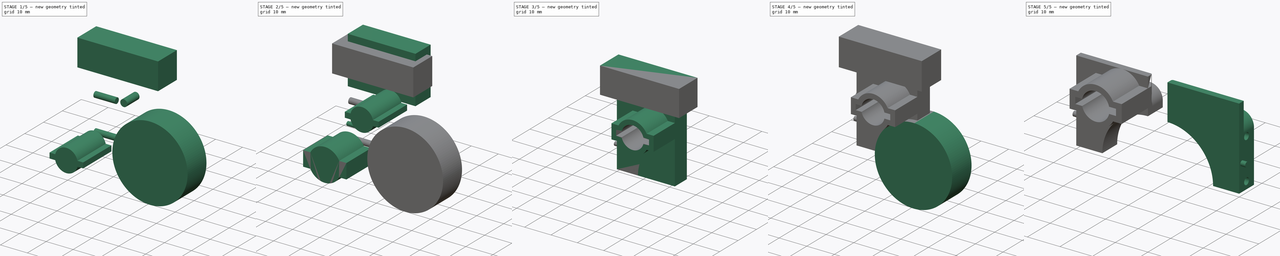
[diagram: build sequence overview — one tinted view per stage of 5, left to right]
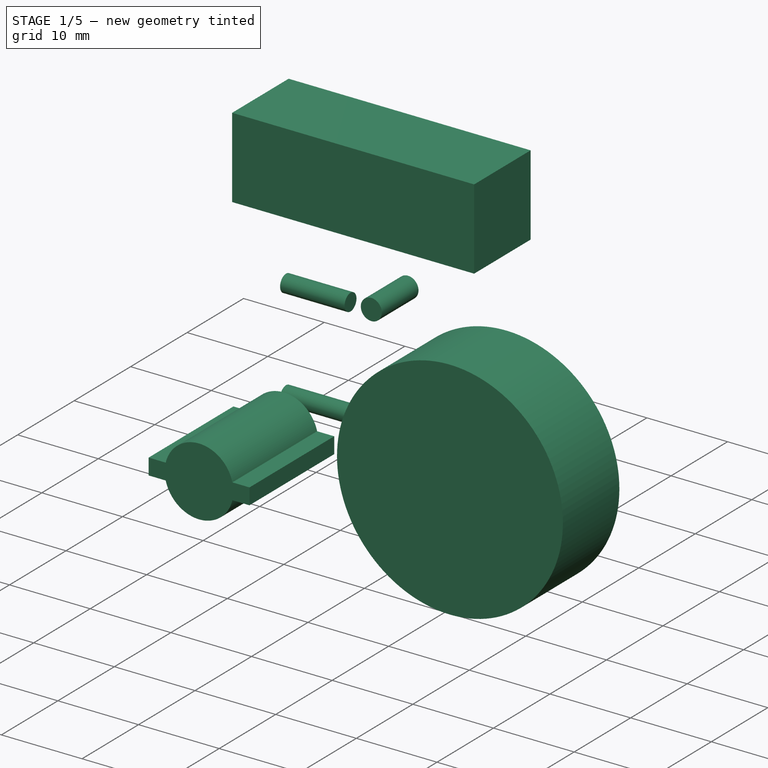
[diagram: stage 1 of 5 — iso view after this stage's code; geometry added in this stage tinted green]
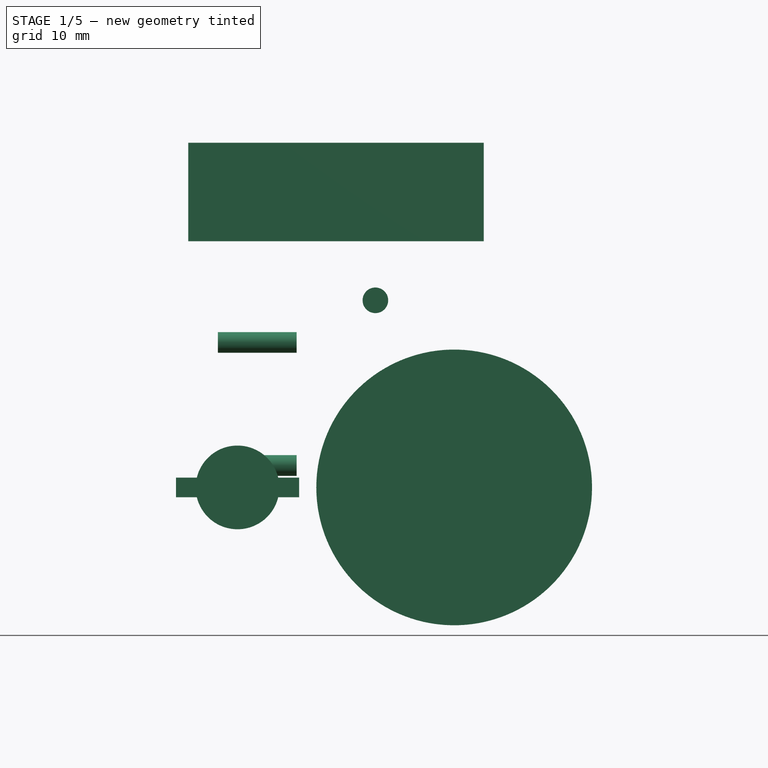
[diagram: stage 1 of 5 — front view after this stage's code; geometry added in this stage tinted green]
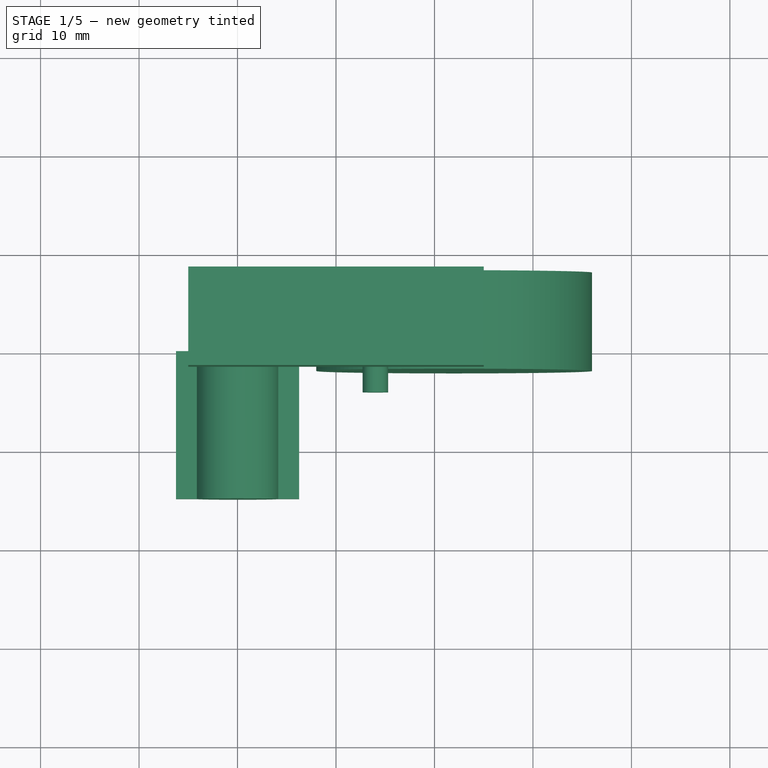
[diagram: stage 1 of 5 — top view after this stage's code; geometry added in this stage tinted green]
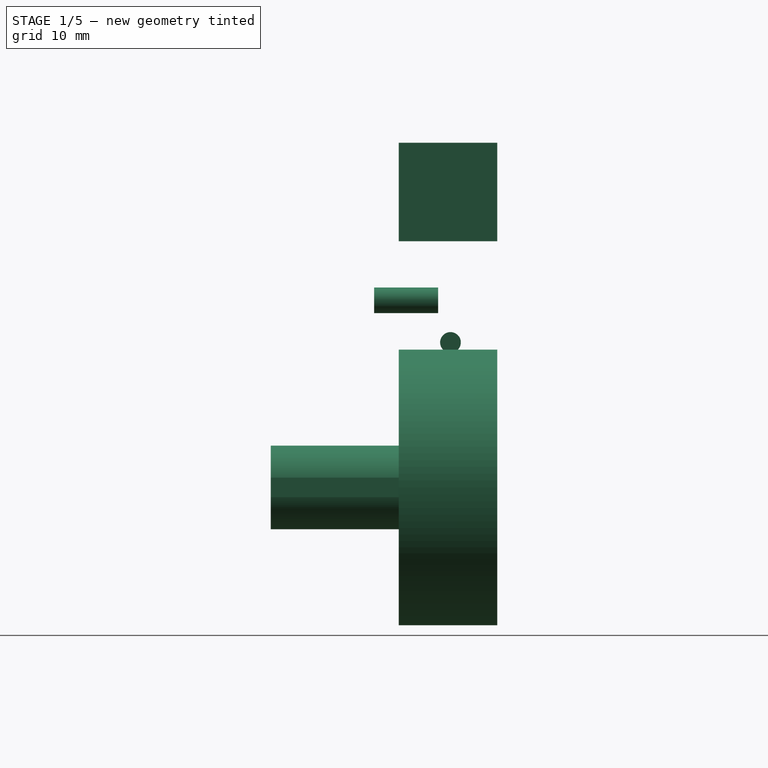
[diagram: stage 1 of 5 — right view after this stage's code; geometry added in this stage tinted green]
FCSTD DOCUMENT  (FreeCAD 0.18R)
Label: plustek120
License: All rights reserved
LicenseURL: http://en.wikipedia.org/wiki/All_rights_reserved
objects: Part::Cylinder×11, Part::Box×8, Part::MultiFuse×5, Sketcher::SketchObject×2, PartDesign::Pad×2, PartDesign::Body×2, Part::Cut×2, Part::Fillet×2, Part::Mirroring×1
note: 37 computed .brp shape members not serialized (recipe doc carries the construction recipe); baked Part::Feature solids carry a one-line shape summary decoded from their .brp

FEATURE [Part::Cylinder] Cylinder  label="Screwhole 1"
  Angle = 360
  AttacherType = Attacher::AttachEngine3D
  Height = 8
  Placement = pos=(-2,3.25,2.225) rot=(0,1,0;1.5708rad)
  Radius = 1.05
FEATURE [Part::Cylinder] Cylinder001  label="Screwhole 2"
  Angle = 360
  AttacherType = Attacher::AttachEngine3D
  Height = 8
  Placement = pos=(-2,3.25,14.725) rot=(0,1,0;1.5708rad)
  Radius = 1.05
FEATURE [PartDesign::Body] Body  label="T tube"
  Group = -> [CopySketch001,Pad]
  Origin = -> Origin001
  Placement = pos=(14,1.5,19) rot=(0,0,1;0rad)
  Tip = -> Pad
FEATURE [PartDesign::Pad] Pad001
  Length = 15
  Length2 = 100
  Placement = pos=(0,0,0) rot=(1,0,0;1.5708rad)
  Profile = -> CopySketch
  Type = 0
FEATURE [PartDesign::Body] Body001  label="T tube cutaway"
  Group = -> [CopySketch,Pad001]
  Origin = -> Origin002
  Placement = pos=(14,1.5,19) rot=(0,0,1;0rad)
  Tip = -> Pad001
FEATURE [Part::Cylinder] Cylinder005  label="Cylinder003"
  Angle = 360
  AttacherType = Attacher::AttachEngine3D
  Height = 10
  Placement = pos=(22,8,0) rot=(1,0,0;1.5708rad)
  Radius = 14
FEATURE [Part::Box] Box010  label="TopCutoff001"
  AttacherType = Attacher::AttachEngine3D
  Height = 10
  Length = 30
  Placement = pos=(-5,-2,25) rot=(0,0,1;0rad)
  Width = 10
FEATURE [Part::Cylinder] Cylinder011
  Angle = 360
  AttacherType = Attacher::AttachEngine3D
  Height = 6.5
  Placement = pos=(14,2,19) rot=(1,0,0;1.5708rad)
  Radius = 1.3
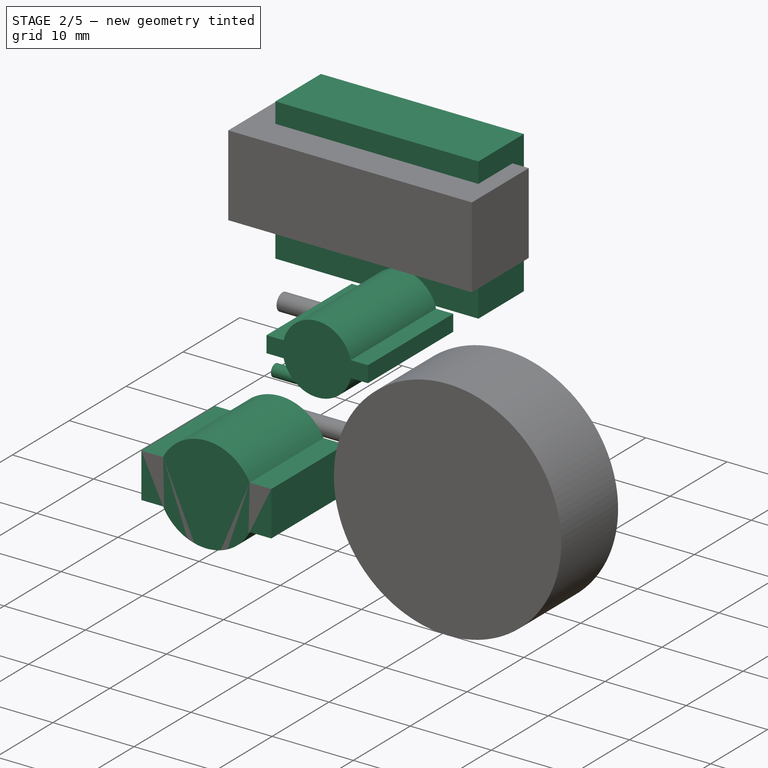
[diagram: stage 2 of 5 — iso view after this stage's code; geometry added in this stage tinted green]
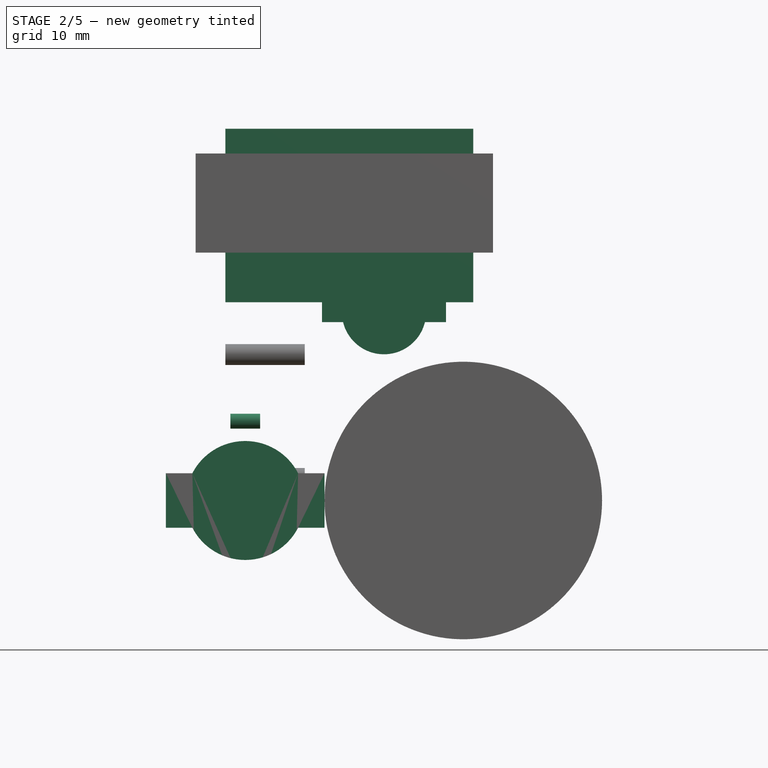
[diagram: stage 2 of 5 — front view after this stage's code; geometry added in this stage tinted green]
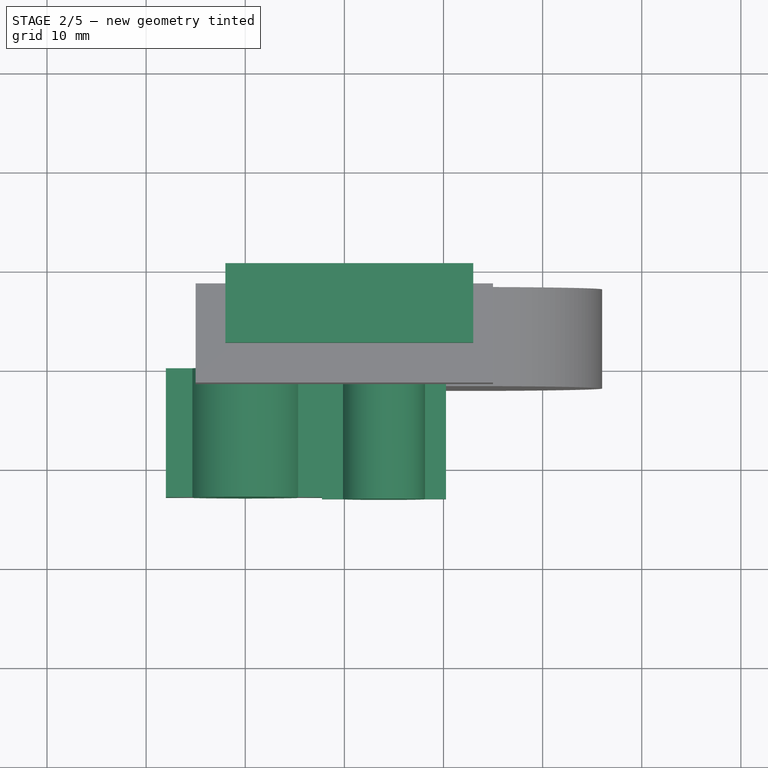
[diagram: stage 2 of 5 — top view after this stage's code; geometry added in this stage tinted green]
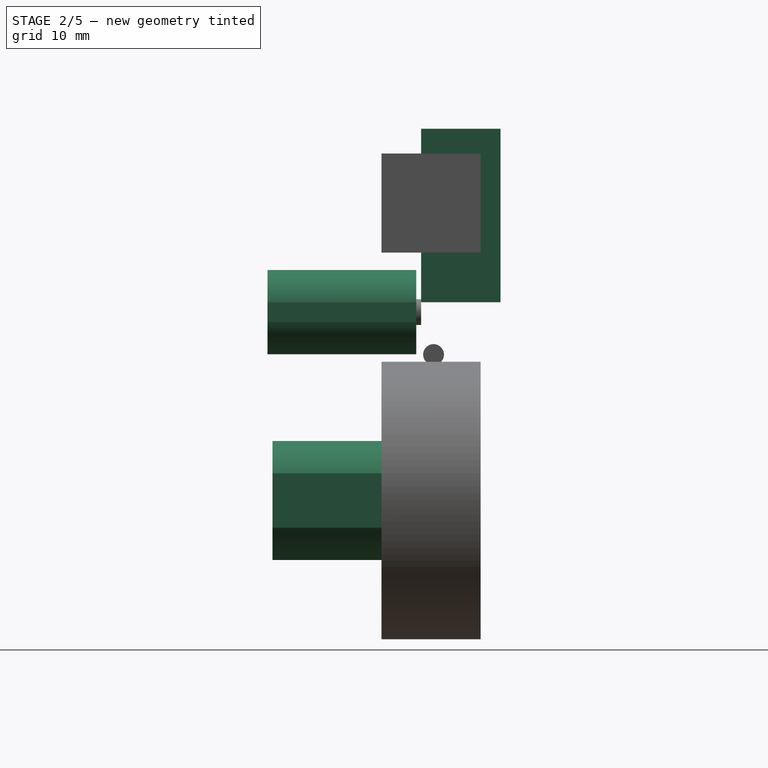
[diagram: stage 2 of 5 — right view after this stage's code; geometry added in this stage tinted green]
FEATURE [Part::Box] Box002  label="Carrier cutaway 2"
  AttacherType = Attacher::AttachEngine3D
  Height = 17.5
  Length = 25
  Placement = pos=(-2,2,20) rot=(0,0,1;0rad)
  Width = 8
FEATURE [Part::Cylinder] Cylinder002  label="Cylinder"
  Angle = 360
  AttacherType = Attacher::AttachEngine3D
  Height = 3
  Placement = pos=(-1.5,1.25,31.25) rot=(0,1,0;1.5708rad)
  Radius = 0.75
FEATURE [Part::Box] Box003  label="Cube"
  AttacherType = Attacher::AttachEngine3D
  Height = 1.5
  Length = 3
  Placement = pos=(-1.5,3.5,30) rot=(0,0,1;0rad)
  Width = 3
FEATURE [Part::Cylinder] Cylinder003  label="Cylinder001"
  Angle = 360
  AttacherType = Attacher::AttachEngine3D
  Height = 3
  Placement = pos=(-1.5,1.25,8) rot=(0,1,0;1.5708rad)
  Radius = 0.75
FEATURE [Sketcher::SketchObject] CopySketch  label="Inner tube cutout sketch"
  MapMode = 5
  Placement = pos=(0,0,0) rot=(1,0,0;1.5708rad)
  Support = -> [XZ_Plane002]
  sketch-geometry (19):
    g0: Circle [constr] CenterX=0 CenterY=0 CenterZ=0 NormalX=0 NormalY=0 NormalZ=1 AngleXU=0 Radius=4.25
    g1: LineSegment [constr] StartX=-6.25 StartY=-1 StartZ=0 EndX=6.25 EndY=-1 EndZ=0
    g2: LineSegment [constr] StartX=6.25 StartY=-1 StartZ=0 EndX=6.25 EndY=1 EndZ=0
    g3: LineSegment [constr] StartX=6.25 StartY=1 StartZ=0 EndX=-6.25 EndY=1 EndZ=0
    g4: LineSegment [constr] StartX=-6.25 StartY=1 StartZ=0 EndX=-6.25 EndY=-1 EndZ=0
    g5: Circle [constr] CenterX=0 CenterY=0 CenterZ=0 NormalX=0 NormalY=0 NormalZ=1 AngleXU=0 Radius=6.32949
    g6: GeomPoint X=-4.13068 Y=1 Z=0
    g7: GeomPoint X=-4.13068 Y=-1 Z=0
    g8: GeomPoint X=4.13068 Y=1 Z=0
    g9: GeomPoint X=4.13068 Y=-1 Z=0
    g10: LineSegment StartX=-4.13068 StartY=1 StartZ=0 EndX=-6.25 EndY=1 EndZ=0
    g11: LineSegment StartX=-6.25 StartY=1 StartZ=0 EndX=-6.25 EndY=-1 EndZ=0
    g12: LineSegment StartX=-6.25 StartY=-1 StartZ=0 EndX=-4.13068 EndY=-1 EndZ=0
    g13: LineSegment StartX=4.13068 StartY=-1 StartZ=0 EndX=6.25 EndY=-1 EndZ=0
    g14: LineSegment StartX=6.25 StartY=-1 StartZ=0 EndX=6.25 EndY=1 EndZ=0
    g15: LineSegment StartX=6.25 StartY=1 StartZ=0 EndX=4.13068 EndY=1 EndZ=0
    g16: ArcOfCircle CenterX=0 CenterY=0 CenterZ=0 NormalX=0 NormalY=0 NormalZ=1 AngleXU=0 Radius=4.25 StartAngle=0.237521 EndAngle=2.90407
    g17: ArcOfCircle CenterX=0 CenterY=0 CenterZ=0 NormalX=0 NormalY=0 NormalZ=1 AngleXU=0 Radius=4.25 StartAngle=3.37911 EndAngle=6.04423
    g18: LineSegment StartX=4.13068 StartY=-1 StartZ=0 EndX=4.12924 EndY=-1.00592 EndZ=0
  constraints (43):
    c: Coincident(g-1,g0)
    c: Radius(g0) = 4.25
    c: Coincident(g1,g2)
    c: Coincident(g2,g3)
    c: Coincident(g3,g4)
    c: Coincident(g4,g1)
    c: Horizontal(g1)
    c: Horizontal(g3)
    c: Vertical(g2)
    c: Vertical(g4)
    c: Distance(g3) = 12.5
    c: Distance(g2) = 2
    c: PointOnObject(g1,g5)
    c: Coincident(g5,g0)
    c: PointOnObject(g2,g5)
    c: PointOnObject(g3,g5)
    c: PointOnObject(g6,g3)
    c: PointOnObject(g6,g0)
    c: PointOnObject(g7,g1)
    c: PointOnObject(g7,g0)
    c: PointOnObject(g9,g0)
    c: PointOnObject(g9,g1)
    c: PointOnObject(g8,g3)
    c: Coincident(g10,g6)
    c: Coincident(g10,g3)
    c: Coincident(g10,g11)
    c: Coincident(g11,g1)
    c: Coincident(g11,g12)
    c: Coincident(g12,g7)
    c: Coincident(g13,g9)
    c: Coincident(g13,g1)
    c: Coincident(g13,g14)
    c: Coincident(g14,g2)
    c: Coincident(g14,g15)
    c: Coincident(g15,g8)
    c: Coincident(g16,g-1)
    c: Coincident(g16,g6)
    c: Coincident(g16,g8)
    c: Coincident(g17,g16)
    c: Coincident(g17,g7)
    c: Angle(g17) = 2.66512
    c: Coincident(g18,g9)
    c: Coincident(g18,g17)
FEATURE [Sketcher::SketchObject] CopySketch001  label="Outer tube sketch"
  MapMode = 5
  Placement = pos=(0,0,0) rot=(1,0,0;1.5708rad)
  Support = -> [XZ_Plane001]
  sketch-geometry (17):
    g0: Circle [constr] CenterX=0 CenterY=0 CenterZ=0 NormalX=0 NormalY=0 NormalZ=1 AngleXU=0 Radius=6
    g1: LineSegment [constr] StartX=-8 StartY=-2.75 StartZ=0 EndX=8 EndY=-2.75 EndZ=0
    g2: LineSegment [constr] StartX=8 StartY=-2.75 StartZ=0 EndX=8 EndY=2.75 EndZ=0
    g3: LineSegment [constr] StartX=8 StartY=2.75 StartZ=0 EndX=-8 EndY=2.75 EndZ=0
    g4: LineSegment [constr] StartX=-8 StartY=2.75 StartZ=0 EndX=-8 EndY=-2.75 EndZ=0
    g5: Circle [constr] CenterX=0 CenterY=0 CenterZ=0 NormalX=0 NormalY=0 NormalZ=1 AngleXU=0 Radius=8.45946
    g6: GeomPoint X=-5.33268 Y=2.75 Z=0
    g7: GeomPoint X=-5.33268 Y=-2.75 Z=0
    g8: GeomPoint X=5.33268 Y=2.75 Z=0
    g9: LineSegment StartX=-5.33268 StartY=2.75 StartZ=0 EndX=-8 EndY=2.75 EndZ=0
    g10: LineSegment StartX=-8 StartY=2.75 StartZ=0 EndX=-8 EndY=-2.75 EndZ=0
    g11: LineSegment StartX=-8 StartY=-2.75 StartZ=0 EndX=-5.33268 EndY=-2.75 EndZ=0
    g12: ArcOfCircle CenterX=0 CenterY=0 CenterZ=0 NormalX=0 NormalY=0 NormalZ=1 AngleXU=0 Radius=6 StartAngle=0.476119 EndAngle=2.66547
    g13: ArcOfCircle CenterX=0 CenterY=0 CenterZ=0 NormalX=0 NormalY=0 NormalZ=1 AngleXU=0 Radius=6 StartAngle=3.61771 EndAngle=5.80707
    g14: LineSegment StartX=5.33268 StartY=-2.75 StartZ=0 EndX=8 EndY=-2.75 EndZ=0
    g15: LineSegment StartX=8 StartY=-2.75 StartZ=0 EndX=8 EndY=2.75 EndZ=0
    g16: LineSegment StartX=8 StartY=2.75 StartZ=0 EndX=5.33268 EndY=2.75 EndZ=0
  constraints (39):
    c: Coincident(g-1,g0)
    c: Radius(g0) = 6
    c: Coincident(g1,g2)
    c: Coincident(g2,g3)
    c: Coincident(g3,g4)
    c: Coincident(g4,g1)
    c: Horizontal(g1)
    c: Horizontal(g3)
    c: Vertical(g2)
    c: Vertical(g4)
    c: Distance(g3) = 16
    c: Distance(g2) = 5.5
    c: PointOnObject(g1,g5)
    c: Coincident(g5,g0)
    c: PointOnObject(g2,g5)
    c: PointOnObject(g3,g5)
    c: PointOnObject(g6,g3)
    c: PointOnObject(g6,g0)
    c: PointOnObject(g7,g1)
    c: PointOnObject(g7,g0)
    c: PointOnObject(g8,g3)
    c: Coincident(g9,g6)
    c: Coincident(g9,g3)
    c: Coincident(g9,g10)
    c: Coincident(g10,g1)
    c: Coincident(g10,g11)
    c: Coincident(g11,g7)
    c: Coincident(g12,g-1)
    c: Coincident(g12,g6)
    c: Coincident(g12,g8)
    c: Coincident(g13,g12)
    c: Coincident(g13,g7)
    c: PointOnObject(g13,g1)
    c: Coincident(g13,g14)
    c: Coincident(g14,g1)
    c: Coincident(g14,g15)
    c: Coincident(g15,g2)
    c: Coincident(g15,g16)
    c: Coincident(g16,g8)
FEATURE [PartDesign::Pad] Pad
  Length = 13
  Length2 = 100
  Placement = pos=(0,0,0) rot=(1,0,0;1.5708rad)
  Profile = -> CopySketch001
  Type = 0
FEATURE [Part::MultiFuse] Fusion  label="Fusion_cutaway"
  Shapes = -> [Box002,Cylinder005,Body001,Cylinder001,Cylinder,Box010]
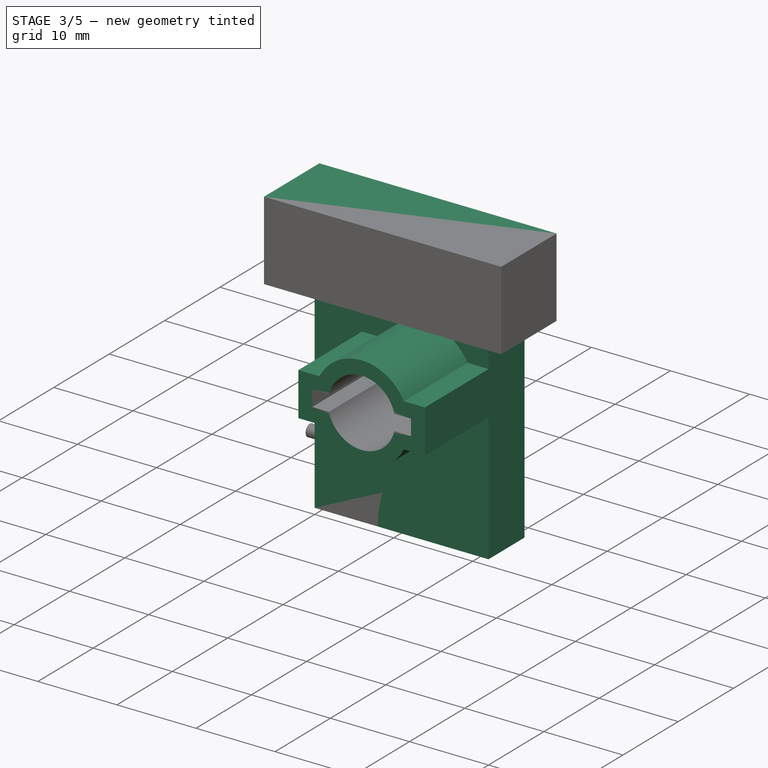
[diagram: stage 3 of 5 — iso view after this stage's code; geometry added in this stage tinted green]
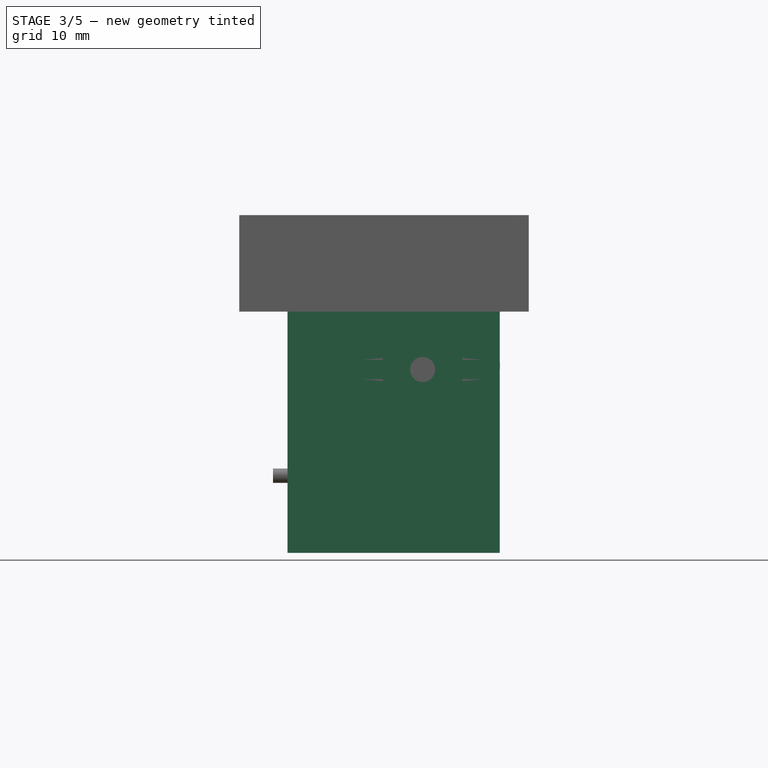
[diagram: stage 3 of 5 — front view after this stage's code; geometry added in this stage tinted green]
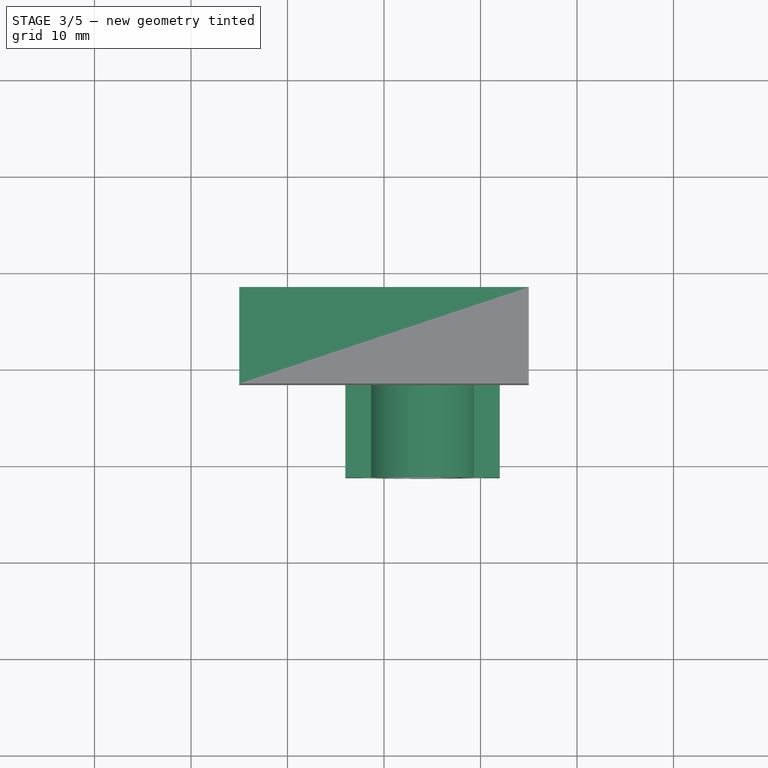
[diagram: stage 3 of 5 — top view after this stage's code; geometry added in this stage tinted green]
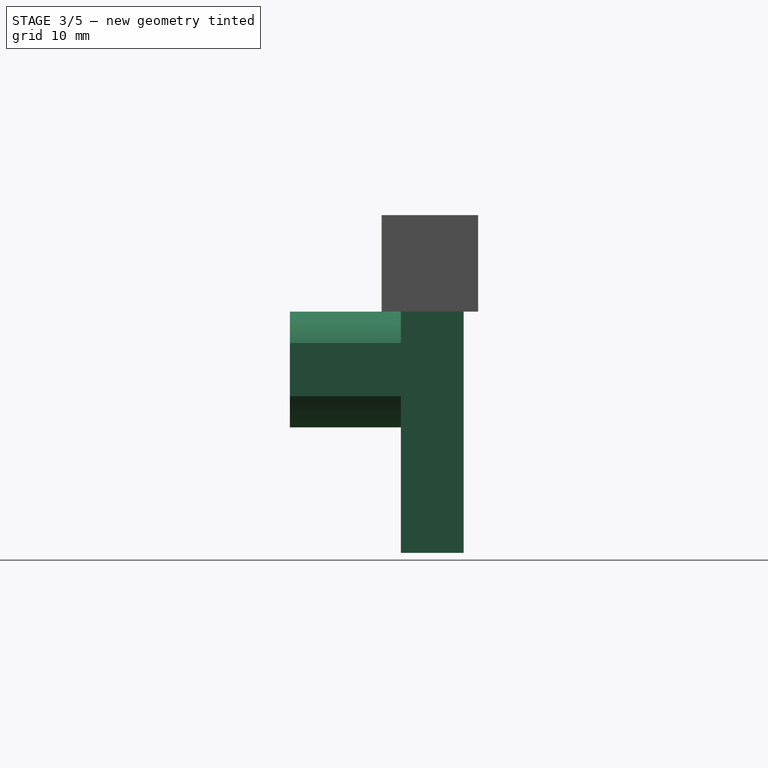
[diagram: stage 3 of 5 — right view after this stage's code; geometry added in this stage tinted green]
FEATURE [Part::Box] Box  label="Base"
  AttacherType = Attacher::AttachEngine3D
  Height = 33.5
  Length = 22
  Width = 6.5
FEATURE [Part::MultiFuse] Fusion001
  Shapes = -> [Body,Cylinder003,Cylinder002,Box,Box003]
FEATURE [Part::Cut] Cut  label="Rail support"
  Base = -> Fusion001
  Tool = -> Fusion
FEATURE [Part::Fillet] Fillet  label="Filleted carrier support (East)"
  Base = -> Cut
  Edges = 3 edges: [Edge8 r=0.5,Edge9 r=4,Edge32 r=4]
FEATURE [Part::Box] Box013  label="Base001"
  AttacherType = Attacher::AttachEngine3D
  Height = 33.5
  Length = 22
  Width = 6.5
FEATURE [Part::Box] Box014  label="TopCutoff002"
  AttacherType = Attacher::AttachEngine3D
  Height = 10
  Length = 30
  Placement = pos=(-5,-2,25) rot=(0,0,1;0rad)
  Width = 10
FEATURE [Part::MultiFuse] Fusion004
  Shapes = -> [Fillet,Cylinder011]
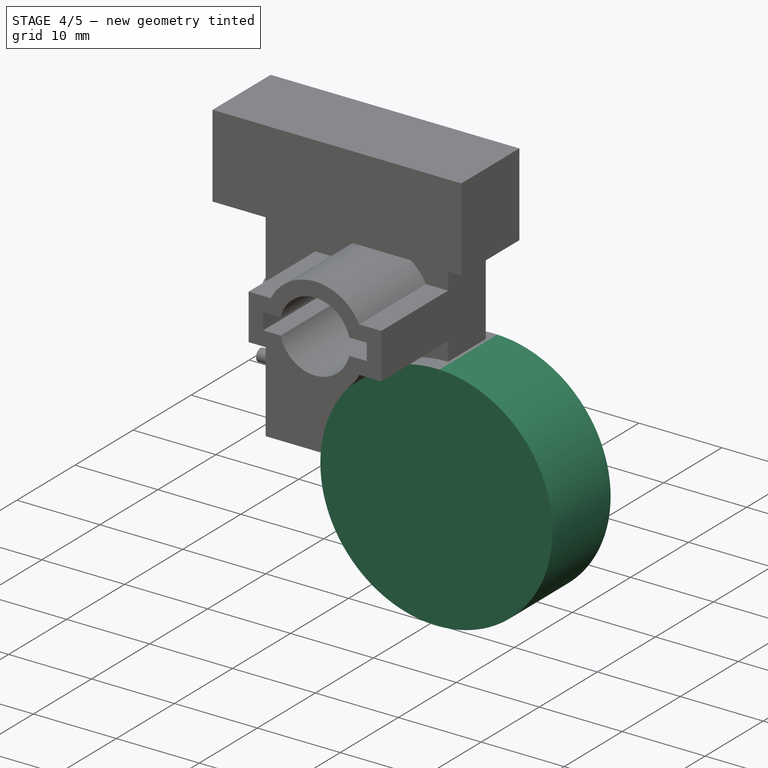
[diagram: stage 4 of 5 — iso view after this stage's code; geometry added in this stage tinted green]
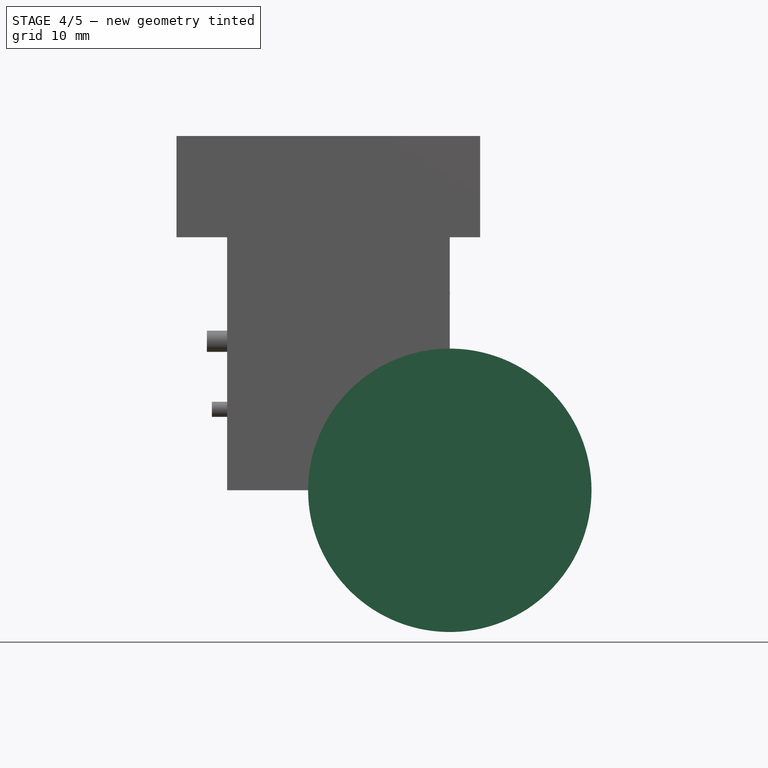
[diagram: stage 4 of 5 — front view after this stage's code; geometry added in this stage tinted green]
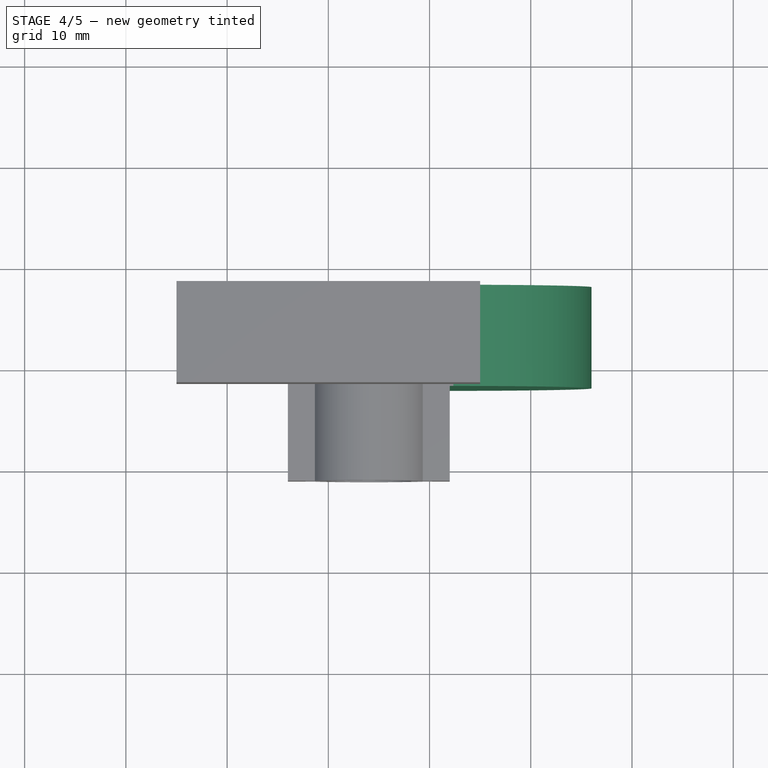
[diagram: stage 4 of 5 — top view after this stage's code; geometry added in this stage tinted green]
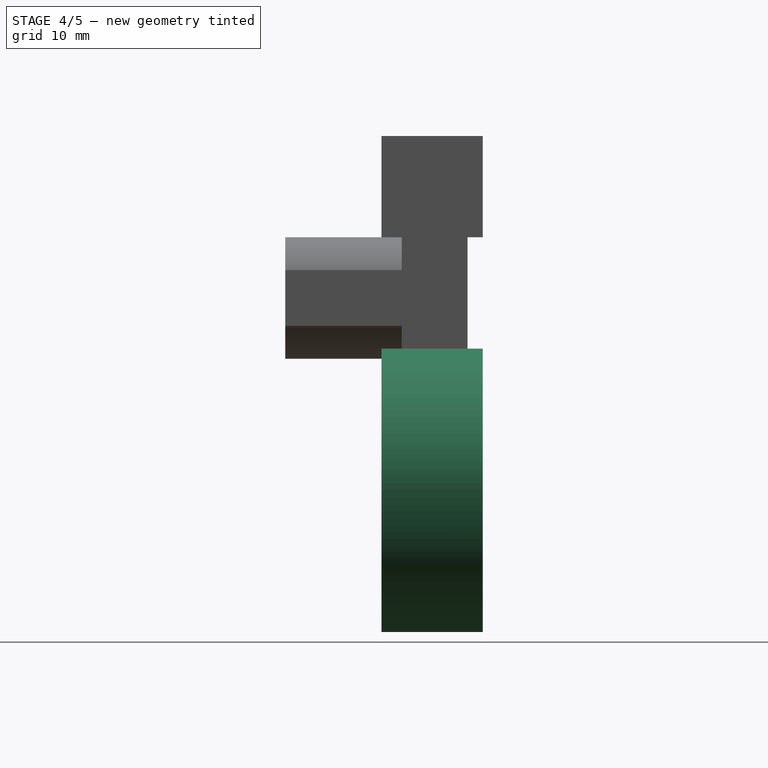
[diagram: stage 4 of 5 — right view after this stage's code; geometry added in this stage tinted green]
FEATURE [Part::Box] Box011  label="Cube001"
  AttacherType = Attacher::AttachEngine3D
  Height = 1.5
  Length = 3
  Placement = pos=(-1.5,3.5,30) rot=(0,0,1;0rad)
  Width = 3
FEATURE [Part::Cylinder] Cylinder006  label="Cylinder010"
  Angle = 360
  AttacherType = Attacher::AttachEngine3D
  Height = 3
  Placement = pos=(-1.5,1.25,8) rot=(0,1,0;1.5708rad)
  Radius = 0.75
FEATURE [Part::Cylinder] Cylinder008  label="Cylinder007"
  Angle = 360
  AttacherType = Attacher::AttachEngine3D
  Height = 3
  Placement = pos=(-1.5,1.25,31.25) rot=(0,1,0;1.5708rad)
  Radius = 0.75
FEATURE [Part::Cylinder] Cylinder009  label="Cylinder006"
  Angle = 360
  AttacherType = Attacher::AttachEngine3D
  Height = 10
  Placement = pos=(22,8,0) rot=(1,0,0;1.5708rad)
  Radius = 14
FEATURE [Part::Cylinder] Cylinder010  label="Screwhole 004"
  Angle = 360
  AttacherType = Attacher::AttachEngine3D
  Height = 8
  Placement = pos=(-2,3.25,14.725) rot=(0,1,0;1.5708rad)
  Radius = 1.05
FEATURE [Part::MultiFuse] Fusion003
  Shapes = -> [Cylinder006,Cylinder008,Box013,Box011]
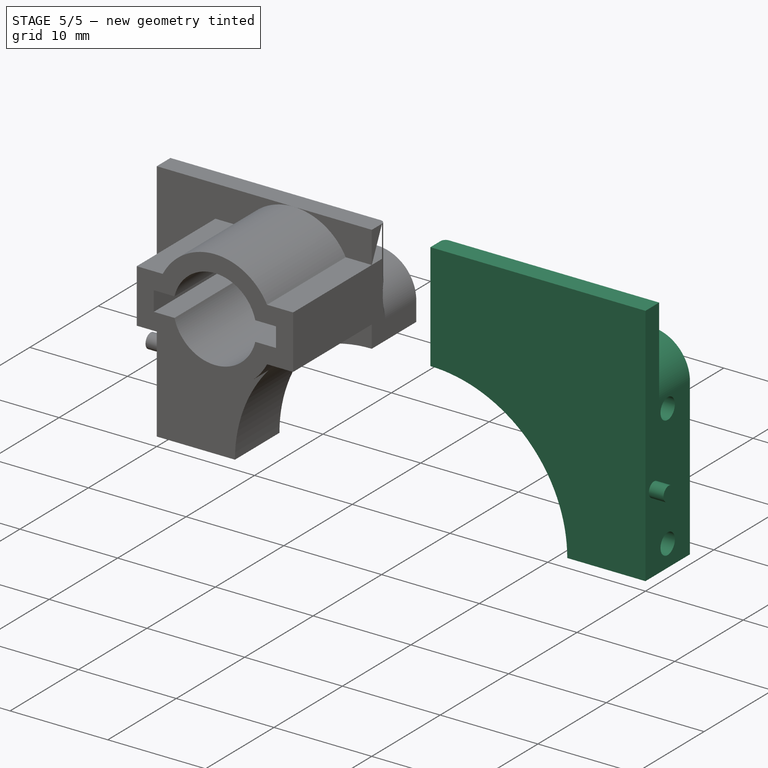
[diagram: stage 5 of 5 — iso view after this stage's code; geometry added in this stage tinted green]
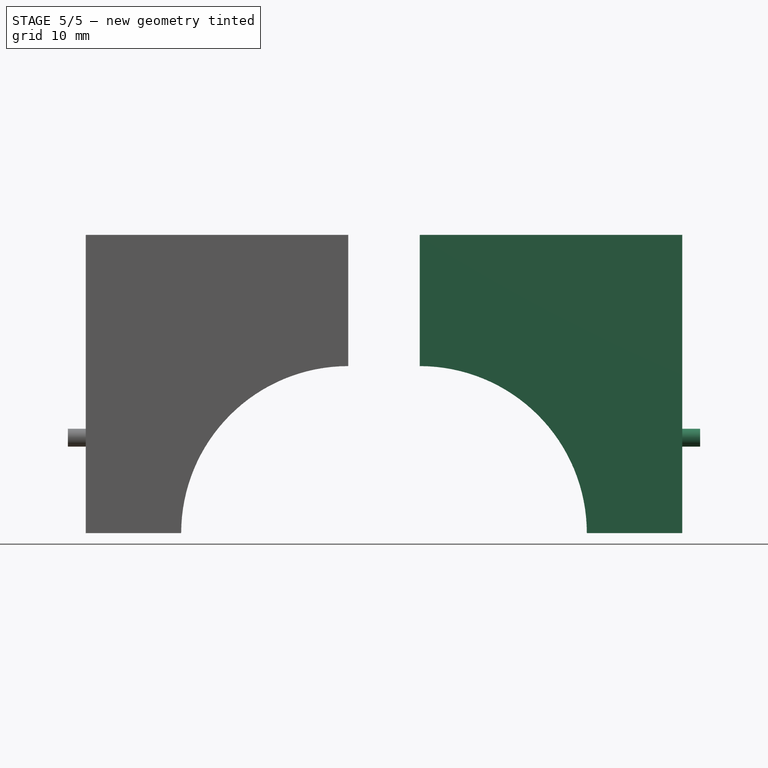
[diagram: stage 5 of 5 — front view after this stage's code; geometry added in this stage tinted green]
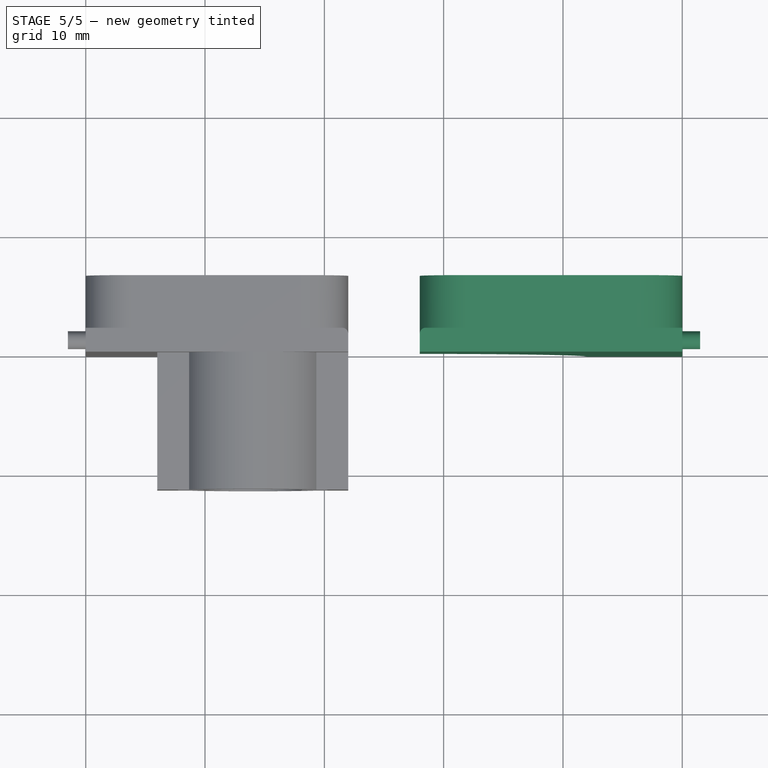
[diagram: stage 5 of 5 — top view after this stage's code; geometry added in this stage tinted green]
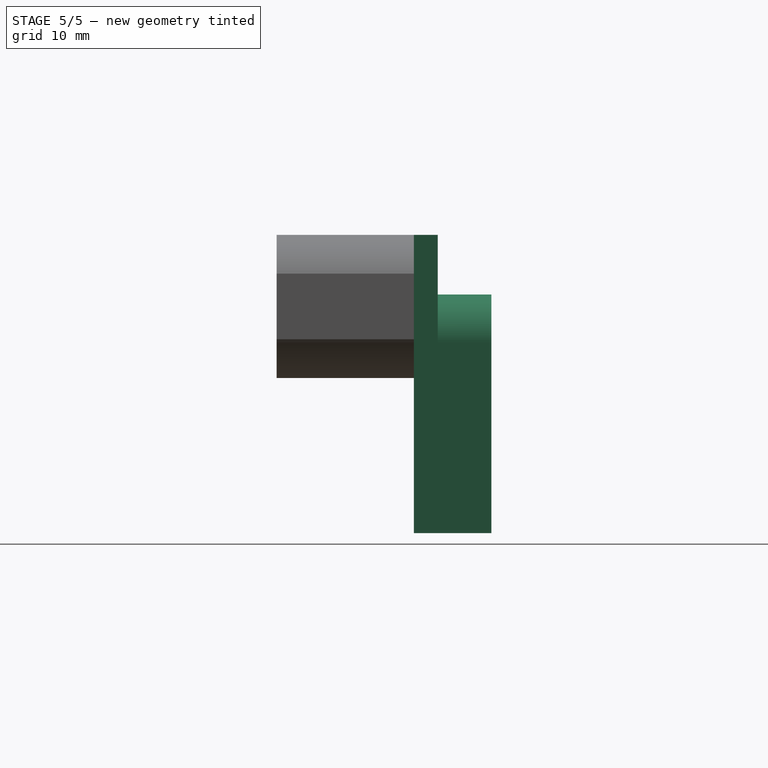
[diagram: stage 5 of 5 — right view after this stage's code; geometry added in this stage tinted green]
FEATURE [Part::Box] Box012  label="Carrier cutaway 003"
  AttacherType = Attacher::AttachEngine3D
  Height = 17.5
  Length = 25
  Placement = pos=(-2,2,20) rot=(0,0,1;0rad)
  Width = 8
FEATURE [Part::Cylinder] Cylinder007  label="Screwhole 003"
  Angle = 360
  AttacherType = Attacher::AttachEngine3D
  Height = 8
  Placement = pos=(-2,3.25,2.225) rot=(0,1,0;1.5708rad)
  Radius = 1.05
FEATURE [Part::MultiFuse] Fusion002  label="Fusion_cutaway001"
  Shapes = -> [Box012,Cylinder009,Cylinder010,Cylinder007,Box014]
FEATURE [Part::Cut] Cut001  label="Carrier support (west)"
  Base = -> Fusion003
  Tool = -> Fusion002
FEATURE [Part::Fillet] Fillet001
  Base = -> Cut001
  Edges = 3 edges: [Edge6 r=4,Edge15 r=0.5,Edge18 r=4]
FEATURE [Part::Mirroring] Part__Mirroring  label="Fillet001 (Mirror #1)"
  Base = (0,0,0)
  Normal = (1,0,0)
  Placement = pos=(50,0,0) rot=(0,0,1;0rad)
  Source = -> Fillet001
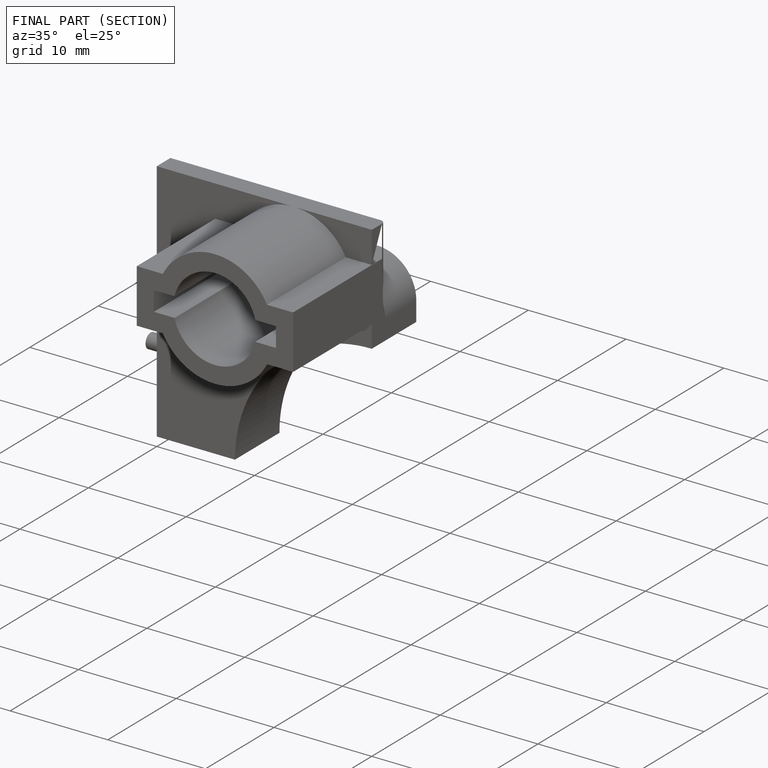
[diagram: finished part — half-section view (interior)]
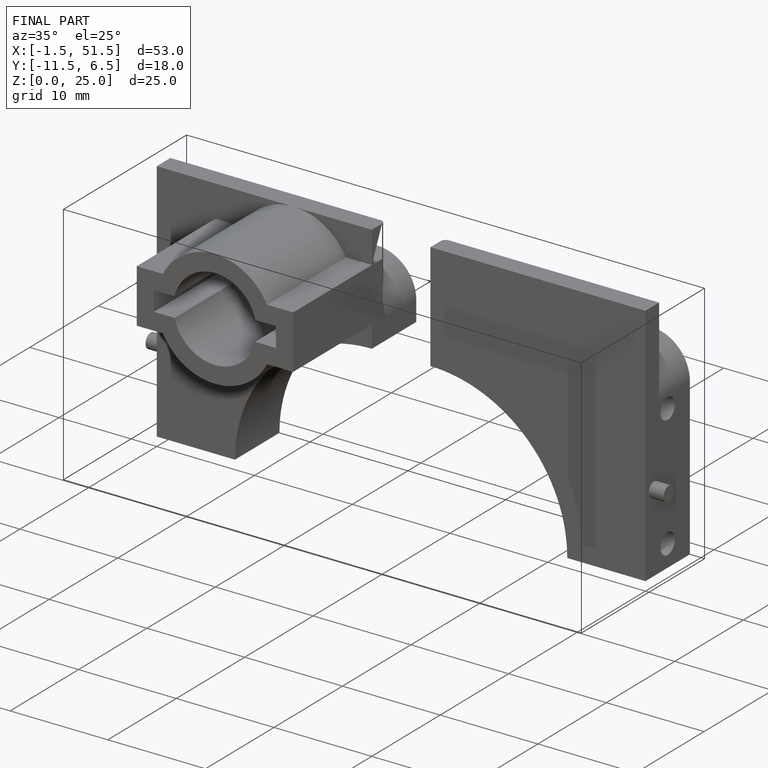
[diagram: finished part — iso view with bounding-box wireframe]
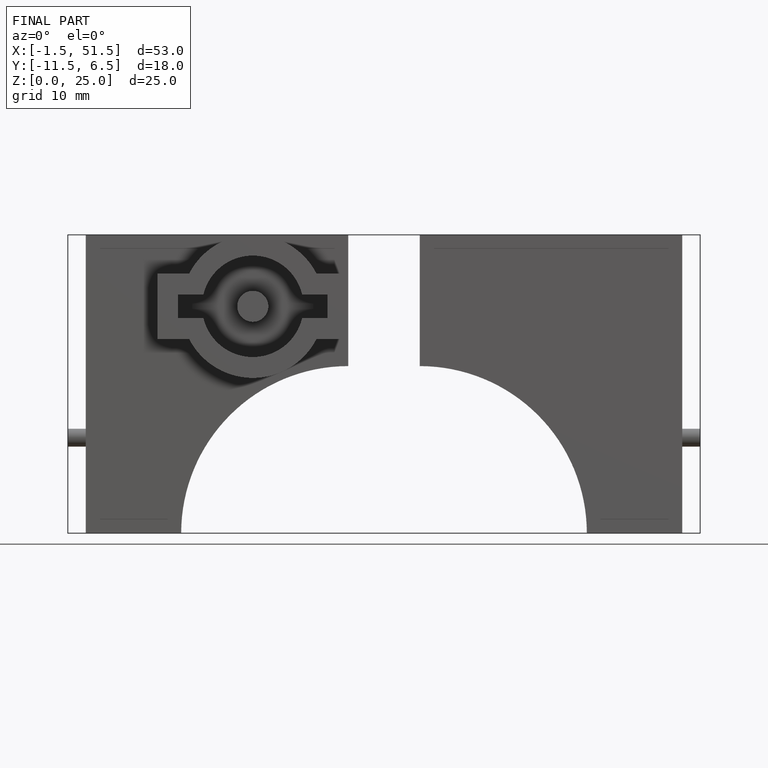
[diagram: finished part — front view with bounding-box wireframe]
